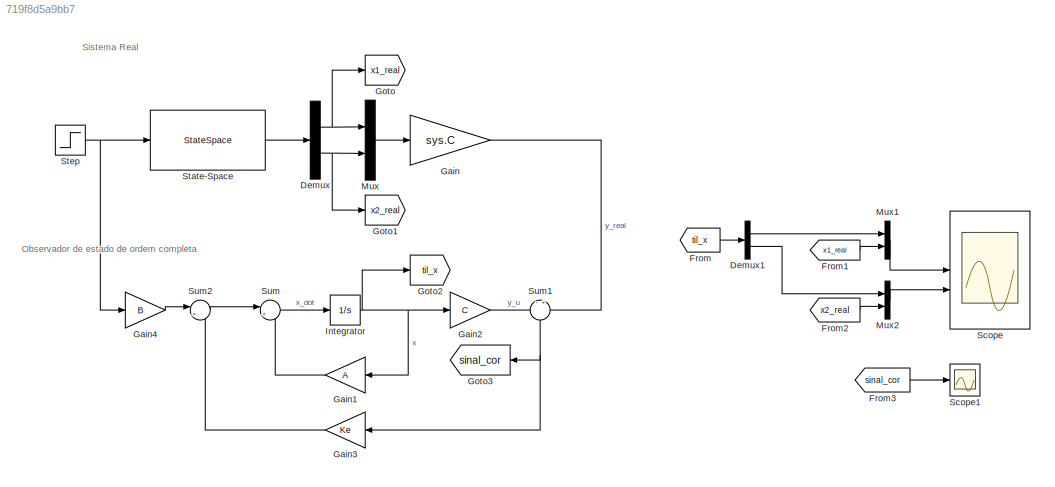
MODEL slx_719f8d5a9bb7
KIND model
CONFIG AbsTol = auto
CONFIG EnableMultiTasking = off
CONFIG FixedStep = auto
CONFIG MaxStep = auto
CONFIG MinStep = auto
CONFIG RelTol = 1e-3
CONFIG SampleTimeConstraint = Unconstrained
CONFIG SolverName = VariableStepAuto
CONFIG StartTime = 0.0
CONFIG StopTime = 10.0
BLOCK [Demux] Demux
  Outputs = 2
BLOCK [Demux] Demux1
  Outputs = 2
BLOCK [From] From
  GotoTag = til_x
BLOCK [From] From1
  GotoTag = x1_real
BLOCK [From] From2
  GotoTag = x2_real
BLOCK [From] From3
  GotoTag = sinal_cor
BLOCK [Gain] Gain
  Gain = sys.C
  Multiplication = Matrix(K*u)
BLOCK [Gain] Gain1
  Gain = A
  Multiplication = Matrix(K*u)
  NameLocation = top
BLOCK [Gain] Gain2
  Gain = C
  Multiplication = Matrix(K*u)
BLOCK [Gain] Gain3
  Gain = Ke
  Multiplication = Matrix(K*u)
  NameLocation = top
BLOCK [Gain] Gain4
  Gain = B
  Multiplication = Matrix(K*u)
BLOCK [Goto] Goto
  GotoTag = x1_real
BLOCK [Goto] Goto1
  GotoTag = x2_real
BLOCK [Goto] Goto2
  GotoTag = til_x
BLOCK [Goto] Goto3
  GotoTag = sinal_cor
  NameLocation = top
BLOCK [Integrator] Integrator
  InitialCondition = [ci_x1; ci_x2]
BLOCK [Mux] Mux
  DisplayOption = bar
  Inputs = 2
BLOCK [Mux] Mux1
  DisplayOption = bar
  Inputs = 2
BLOCK [Mux] Mux2
  DisplayOption = bar
  Inputs = 2
BLOCK [Scope] Scope
  Floating = off
  NumInputPorts = 2
  ScopeSpecificationString = Simulink.scopes.TimeScopeBlockCfg('CurrentConfiguration', extmgr.ConfigurationSet(extmgr.Configuration('Core','General UI',true),extmgr.Configuration('Core','Source UI',true),extmgr.Configuration('Sources','WiredSimulink',true),extmgr.Configuration('Visuals','Time Domain',true,'SerializedDisplays',{struct('MinYLimReal','-0.24833','MaxYLimReal','2.23495','YLabelReal','','MinYLimMag','0.00000','MaxY...<+2723ch>
BLOCK [Scope] Scope1
  Floating = off
  NumInputPorts = 1
  ScopeSpecificationString = Simulink.scopes.TimeScopeBlockCfg('CurrentConfiguration', extmgr.ConfigurationSet(extmgr.Configuration('Core','General UI',true),extmgr.Configuration('Core','Source UI',true),extmgr.Configuration('Sources','WiredSimulink',true,'DataLoggingVariableName','ScopeData1'),extmgr.Configuration('Visuals','Time Domain',true,'SerializedDisplays',{struct('MinYLimReal','-0.90765','MaxYLimReal','0.16888','YLab...<+1597ch>
BLOCK [StateSpace] State-Space
  A = sys.A
  B = sys.B
  C = eye(2)
  D = zeros(2,1)
  InitialCondition = 0
BLOCK [Step] Step
  SampleTime = 0
  Time = 0
BLOCK [Sum] Sum
  Inputs = |++
BLOCK [Sum] Sum1
  Inputs = -+
  NameLocation = left
BLOCK [Sum] Sum2
  Inputs = |++
ANNOTATION (root): Observador de estado de ordem completa
ANNOTATION (root): Sistema Real
LINE Demux1:1 -> Mux1:1
LINE Demux1:2 -> Mux2:1
NET Demux:1 -> Goto:1, Mux:1
NET Demux:2 -> Goto1:1, Mux:2
LINE From1:1 -> Mux1:2
LINE From2:1 -> Mux2:2
LINE From3:1 -> Scope1:1
LINE From:1 -> Demux1:1
LINE Gain1:1 -> Sum:2
LINE Gain2:1 -> Sum1:1
LINE Gain3:1 -> Sum2:2
LINE Gain4:1 -> Sum2:1
LINE Gain:1 -> Sum1:2
NET Integrator:1 -> Gain1:1, Gain2:1, Goto2:1
LINE Mux1:1 -> Scope:1
LINE Mux2:1 -> Scope:2
LINE Mux:1 -> Gain:1
LINE State-Space:1 -> Demux:1
NET Step:1 -> Gain4:1, State-Space:1
NET Sum1:1 -> Gain3:1, Goto3:1
LINE Sum2:1 -> Sum:1
LINE Sum:1 -> Integrator:1
note: NET lines group one-source signal fan-out (src -> all destinations, sorted); 1:1 wires keep LINE
